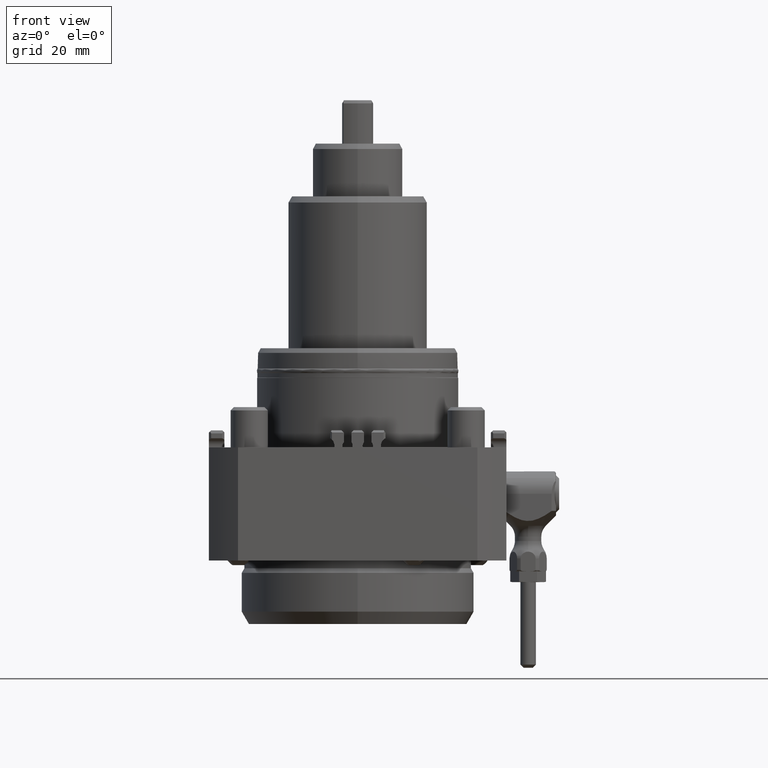
[diagram: clean part render]
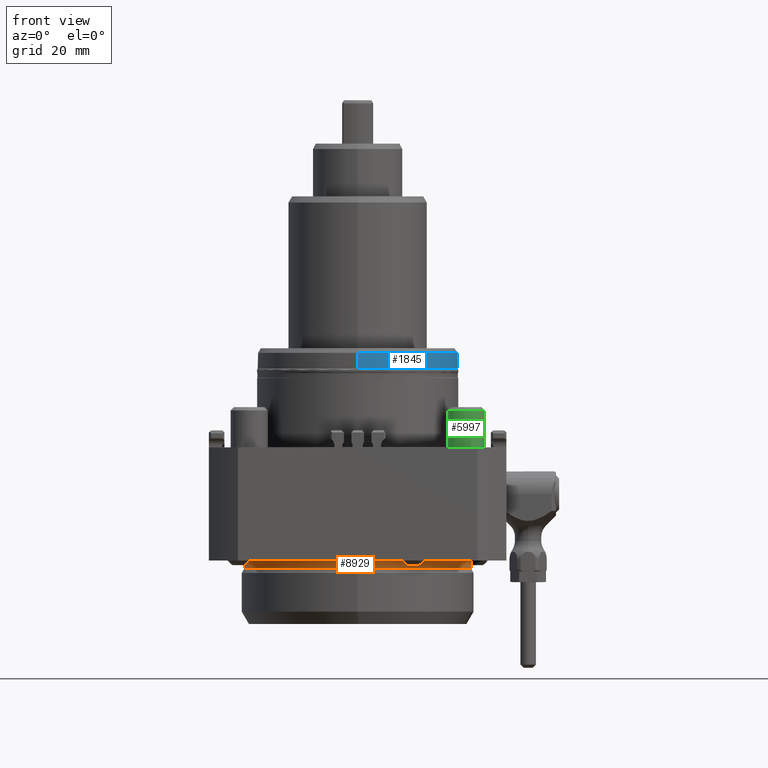
[diagram: same view with three faces highlighted in distinct colors, each labeled with its STEP entity id]
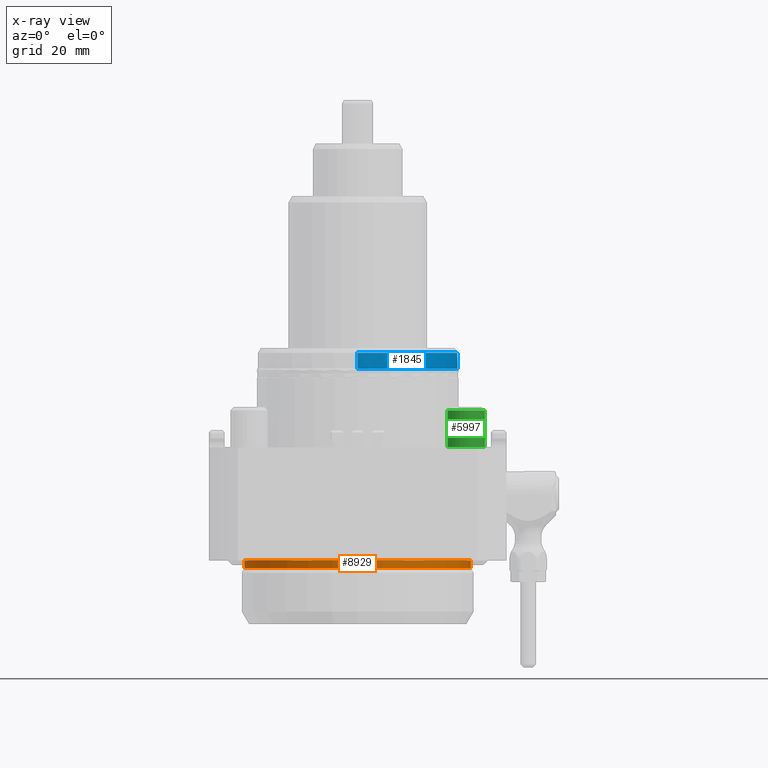
[diagram: x-ray of the same camera — body ghosted, the three highlighted faces saturated]
A machine part, front view with three faces highlighted in distinct colors.
The next image is the same camera in x-ray (body ghosted, the three faces saturated) — at least one of them is partly hidden behind the body in this view.
Their STEP definitions:

[orange] entity #8929 — the highlighted cylindrical surface (partial cylindrical patch) has radius 36.534 mm, axis along (0, 0, 1).
#36=CARTESIAN_POINT('',(36.533974596,-0.,-36.5));
#37=VERTEX_POINT('',#36);
#38=CARTESIAN_POINT('',(36.533974596,-0.,-39.));
#39=VERTEX_POINT('',#38);
#40=CARTESIAN_POINT('',(36.533974596,-0.,-36.5));
#41=DIRECTION('',(-0.,-0.,-1.));
#42=VECTOR('',#41,2.5);
#43=LINE('',#40,#42);
#44=EDGE_CURVE('',#37,#39,#43,.T.);
#55=CARTESIAN_POINT('',(-36.533974596,-0.,-39.));
#56=VERTEX_POINT('',#55);
#64=CARTESIAN_POINT('',(-36.533974596,-0.,-36.5));
#65=VERTEX_POINT('',#64);
#66=CARTESIAN_POINT('',(-36.533974596,-0.,-36.5));
#67=DIRECTION('',(-0.,-0.,-1.));
#68=VECTOR('',#67,2.5);
#69=LINE('',#66,#68);
#70=EDGE_CURVE('',#65,#56,#69,.T.);
#6430=CARTESIAN_POINT('',(-0.,-0.,-36.5));
#6431=DIRECTION('',(-0.,0.,1.));
#6432=DIRECTION('',(1.,0.,0.));
#6433=AXIS2_PLACEMENT_3D('',#6430,#6431,#6432);
#6434=CIRCLE('',#6433,36.533974596);
#6435=EDGE_CURVE('',#65,#37,#6434,.T.);
#6798=CARTESIAN_POINT('',(-0.,-36.533974596,-39.));
#6799=VERTEX_POINT('',#6798);
#6806=CARTESIAN_POINT('',(-0.,-0.,-39.));
#6807=DIRECTION('',(0.,-0.,-1.));
#6808=DIRECTION('',(-0.,-1.,0.));
#6809=AXIS2_PLACEMENT_3D('',#6806,#6807,#6808);
#6810=CIRCLE('',#6809,36.533974596);
#6811=EDGE_CURVE('',#6799,#56,#6810,.T.);
#8911=CARTESIAN_POINT('',(-0.,-0.,-39.));
#8912=DIRECTION('',(0.,0.,1.));
#8913=DIRECTION('',(1.,-0.,0.));
#8914=AXIS2_PLACEMENT_3D('',#8911,#8912,#8913);
#8915=CYLINDRICAL_SURFACE('',#8914,36.533974596);
#8916=ORIENTED_EDGE('',*,*,#44,.F.);
#8917=ORIENTED_EDGE('',*,*,#6435,.F.);
#8918=ORIENTED_EDGE('',*,*,#70,.T.);
#8919=ORIENTED_EDGE('',*,*,#6811,.F.);
#8920=CARTESIAN_POINT('',(-0.,-0.,-39.));
#8921=DIRECTION('',(0.,-0.,-1.));
#8922=DIRECTION('',(-0.,-1.,0.));
#8923=AXIS2_PLACEMENT_3D('',#8920,#8921,#8922);
#8924=CIRCLE('',#8923,36.533974596);
#8925=EDGE_CURVE('',#39,#6799,#8924,.T.);
#8926=ORIENTED_EDGE('',*,*,#8925,.F.);
#8927=EDGE_LOOP('',(#8916,#8917,#8918,#8919,#8926));
#8928=FACE_BOUND('',#8927,.T.);
#8929=ADVANCED_FACE('',(#8928),#8915,.T.);

[blue] entity #1845 — the highlighted cylindrical surface (partial cylindrical patch) has radius 32.35 mm, axis along (-0, -0, -1).
#1622=CARTESIAN_POINT('',(0.,32.35,25.471987865));
#1623=VERTEX_POINT('',#1622);
#1631=CARTESIAN_POINT('',(10.195431357,-30.701395399,25.471987865));
#1632=VERTEX_POINT('',#1631);
#1633=CARTESIAN_POINT('',(0.,0.,25.471987865));
#1634=DIRECTION('',(0.,-0.,-1.));
#1635=DIRECTION('',(-1.,-0.,0.));
#1636=AXIS2_PLACEMENT_3D('',#1633,#1634,#1635);
#1637=CIRCLE('',#1636,32.35);
#1638=EDGE_CURVE('',#1623,#1632,#1637,.T.);
#1782=CARTESIAN_POINT('',(-0.,-32.35,30.5));
#1783=VERTEX_POINT('',#1782);
#1791=CARTESIAN_POINT('',(0.,32.35,30.5));
#1792=VERTEX_POINT('',#1791);
#1809=CARTESIAN_POINT('',(0.,0.,29.15));
#1810=DIRECTION('',(-0.,-0.,-1.));
#1811=DIRECTION('',(0.,1.,-0.));
#1812=AXIS2_PLACEMENT_3D('',#1809,#1810,#1811);
#1813=CYLINDRICAL_SURFACE('',#1812,32.35);
#1814=CARTESIAN_POINT('',(0.,32.35,25.471987865));
#1815=DIRECTION('',(0.,0.,1.));
#1816=VECTOR('',#1815,5.028012135);
#1817=LINE('',#1814,#1816);
#1818=EDGE_CURVE('',#1623,#1792,#1817,.T.);
#1819=ORIENTED_EDGE('',*,*,#1818,.T.);
#1820=CARTESIAN_POINT('',(0.,0.,30.5));
#1821=DIRECTION('',(0.,0.,1.));
#1822=DIRECTION('',(-0.,-1.,0.));
#1823=AXIS2_PLACEMENT_3D('',#1820,#1821,#1822);
#1824=CIRCLE('',#1823,32.35);
#1825=EDGE_CURVE('',#1783,#1792,#1824,.T.);
#1826=ORIENTED_EDGE('',*,*,#1825,.F.);
#1827=CARTESIAN_POINT('',(-0.,-32.35,25.471987865));
#1828=VERTEX_POINT('',#1827);
#1829=CARTESIAN_POINT('',(-0.,-32.35,25.471987865));
#1830=DIRECTION('',(0.,0.,1.));
#1831=VECTOR('',#1830,5.028012135);
#1832=LINE('',#1829,#1831);
#1833=EDGE_CURVE('',#1828,#1783,#1832,.T.);
#1834=ORIENTED_EDGE('',*,*,#1833,.F.);
#1835=CARTESIAN_POINT('',(0.,0.,25.471987865));
#1836=DIRECTION('',(0.,-0.,-1.));
#1837=DIRECTION('',(-1.,-0.,0.));
#1838=AXIS2_PLACEMENT_3D('',#1835,#1836,#1837);
#1839=CIRCLE('',#1838,32.35);
#1840=EDGE_CURVE('',#1632,#1828,#1839,.T.);
#1841=ORIENTED_EDGE('',*,*,#1840,.F.);
#1842=ORIENTED_EDGE('',*,*,#1638,.F.);
#1843=EDGE_LOOP('',(#1819,#1826,#1834,#1841,#1842));
#1844=FACE_BOUND('',#1843,.T.);
#1845=ADVANCED_FACE('',(#1844),#1813,.T.);

[green] entity #5997 — the highlighted cylindrical surface (edge-blend (fillet) strip) has radius 6 mm, axis along (0, 0, 1).
#5956=CARTESIAN_POINT('',(35.,-36.5,-2.3125));
#5957=DIRECTION('',(0.,0.,1.));
#5958=DIRECTION('',(-1.,0.,0.));
#5959=AXIS2_PLACEMENT_3D('',#5956,#5957,#5958);
#5960=CYLINDRICAL_SURFACE('',#5959,6.);
#5961=CARTESIAN_POINT('',(29.,-36.5,11.9264625));
#5962=VERTEX_POINT('',#5961);
#5963=CARTESIAN_POINT('',(29.,-36.5,0.));
#5964=VERTEX_POINT('',#5963);
#5965=CARTESIAN_POINT('',(29.,-36.5,11.9264625));
#5966=DIRECTION('',(-0.,-0.,-1.));
#5967=VECTOR('',#5966,11.9264625);
#5968=LINE('',#5965,#5967);
#5969=EDGE_CURVE('',#5962,#5964,#5968,.T.);
#5970=ORIENTED_EDGE('',*,*,#5969,.T.);
#5971=CARTESIAN_POINT('',(41.,-36.5,0.));
#5972=VERTEX_POINT('',#5971);
#5973=CARTESIAN_POINT('',(35.,-36.5,0.));
#5974=DIRECTION('',(-0.,-0.,-1.));
#5975=DIRECTION('',(-1.,0.,-0.));
#5976=AXIS2_PLACEMENT_3D('',#5973,#5974,#5975);
#5977=CIRCLE('',#5976,6.);
#5978=EDGE_CURVE('',#5972,#5964,#5977,.T.);
#5979=ORIENTED_EDGE('',*,*,#5978,.F.);
#5980=CARTESIAN_POINT('',(41.,-36.5,11.9264625));
#5981=VERTEX_POINT('',#5980);
#5982=CARTESIAN_POINT('',(41.,-36.5,11.9264625));
#5983=DIRECTION('',(0.,0.,-1.));
#5984=VECTOR('',#5983,11.9264625);
#5985=LINE('',#5982,#5984);
#5986=EDGE_CURVE('',#5981,#5972,#5985,.T.);
#5987=ORIENTED_EDGE('',*,*,#5986,.F.);
#5988=CARTESIAN_POINT('',(35.,-36.5,11.9264625));
#5989=DIRECTION('',(0.,0.,1.));
#5990=DIRECTION('',(1.,-0.,-0.));
#5991=AXIS2_PLACEMENT_3D('',#5988,#5989,#5990);
#5992=CIRCLE('',#5991,6.);
#5993=EDGE_CURVE('',#5962,#5981,#5992,.T.);
#5994=ORIENTED_EDGE('',*,*,#5993,.F.);
#5995=EDGE_LOOP('',(#5970,#5979,#5987,#5994));
#5996=FACE_BOUND('',#5995,.T.);
#5997=ADVANCED_FACE('',(#5996),#5960,.T.);